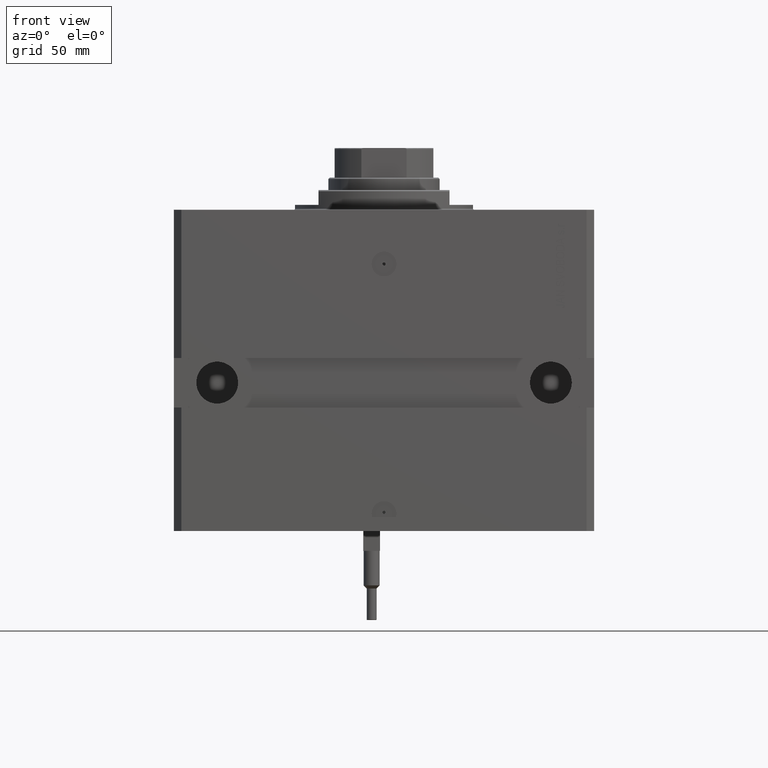
[diagram: clean part render]
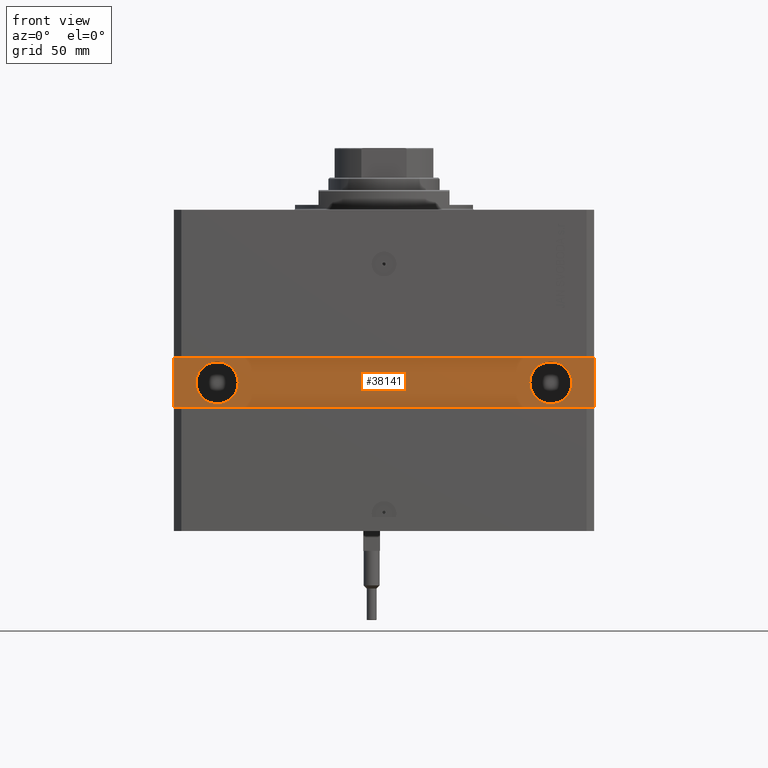
[diagram: same view with one face highlighted and labeled with its STEP entity id]
A machine part, front view. The second image highlights one B-rep face of the part: STEP entity #38141.
In plain terms, the highlighted planar face has unit normal (0, -1, 0).
Its self-contained STEP definition (entity closure, byte-faithful):
#645 = VERTEX_POINT ( 'NONE', #41143 ) ;
#799 = VECTOR ( 'NONE', #43222, 1000.000000000000000 ) ;
#991 = CARTESIAN_POINT ( 'NONE',  ( -67.49999999999997158, -65.00000000000001421, -70.00000000000001421 ) ) ;
#1141 = CARTESIAN_POINT ( 'NONE',  ( 67.50000000000002842, -64.99999999999998579, -70.00000000000000000 ) ) ;
#1921 = CARTESIAN_POINT ( 'NONE',  ( 85.00000000000001421, -64.99999999999998579, -80.00000000000001421 ) ) ;
#3669 = CARTESIAN_POINT ( 'NONE',  ( -75.99999999999997158, -65.00000000000001421, -70.00000000000001421 ) ) ;
#4365 = CARTESIAN_POINT ( 'NONE',  ( -58.99999999999997868, -65.00000000000001421, -70.00000000000001421 ) ) ;
#4924 = FACE_BOUND ( 'NONE', #49041, .T. ) ;
#5908 = DIRECTION ( 'NONE',  ( 1.632680918566406300E-16, -1.000000000000000000, 0.000000000000000000 ) ) ;
#6174 = CARTESIAN_POINT ( 'NONE',  ( 85.00000000000001421, -64.99999999999998579, -80.00000000000001421 ) ) ;
#6857 = ORIENTED_EDGE ( 'NONE', *, *, #12957, .T. ) ;
#9367 = DIRECTION ( 'NONE',  ( 0.000000000000000000, 0.000000000000000000, 1.000000000000000000 ) ) ;
#10005 = ORIENTED_EDGE ( 'NONE', *, *, #34720, .F. ) ;
#10352 = LINE ( 'NONE', #25064, #14165 ) ;
#10465 = ORIENTED_EDGE ( 'NONE', *, *, #32649, .F. ) ;
#10774 = CARTESIAN_POINT ( 'NONE',  ( -85.00000000000001421, -65.00000000000001421, -80.00000000000001421 ) ) ;
#11257 = DIRECTION ( 'NONE',  ( 1.000000000000000000, 1.632680918566406300E-16, 0.000000000000000000 ) ) ;
#11695 = CARTESIAN_POINT ( 'NONE',  ( 76.00000000000002842, -64.99999999999998579, -70.00000000000000000 ) ) ;
#11726 = DIRECTION ( 'NONE',  ( 1.000000000000000000, 0.000000000000000000, 0.000000000000000000 ) ) ;
#12377 = FACE_BOUND ( 'NONE', #14307, .T. ) ;
#12957 = EDGE_CURVE ( 'NONE', #43417, #20235, #10352, .T. ) ;
#13313 = DIRECTION ( 'NONE',  ( 1.000000000000000000, 0.000000000000000000, 0.000000000000000000 ) ) ;
#14165 = VECTOR ( 'NONE', #32765, 1000.000000000000000 ) ;
#14263 = LINE ( 'NONE', #10774, #21467 ) ;
#14307 = EDGE_LOOP ( 'NONE', ( #10465, #22809 ) ) ;
#17079 = LINE ( 'NONE', #1921, #19293 ) ;
#18529 = ORIENTED_EDGE ( 'NONE', *, *, #20668, .T. ) ;
#18654 = AXIS2_PLACEMENT_3D ( 'NONE', #22030, #37211, #11726 ) ;
#19293 = VECTOR ( 'NONE', #9367, 1000.000000000000000 ) ;
#19610 = VERTEX_POINT ( 'NONE', #3669 ) ;
#20097 = PLANE ( 'NONE',  #29290 ) ;
#20235 = VERTEX_POINT ( 'NONE', #27414 ) ;
#20668 = EDGE_CURVE ( 'NONE', #36592, #645, #17079, .T. ) ;
#21345 = EDGE_CURVE ( 'NONE', #46598, #19610, #27253, .T. ) ;
#21467 = VECTOR ( 'NONE', #11257, 1000.000000000000000 ) ;
#22030 = CARTESIAN_POINT ( 'NONE',  ( 67.50000000000002842, -64.99999999999998579, -70.00000000000000000 ) ) ;
#22195 = VERTEX_POINT ( 'NONE', #11695 ) ;
#22809 = ORIENTED_EDGE ( 'NONE', *, *, #48812, .F. ) ;
#23329 = AXIS2_PLACEMENT_3D ( 'NONE', #991, #38085, #46048 ) ;
#25064 = CARTESIAN_POINT ( 'NONE',  ( -85.00000000000001421, -65.00000000000001421, -60.00000000000002842 ) ) ;
#25139 = CIRCLE ( 'NONE', #31489, 8.499999999999992895 ) ;
#26051 = AXIS2_PLACEMENT_3D ( 'NONE', #32859, #43830, #41069 ) ;
#27253 = CIRCLE ( 'NONE', #23329, 8.500000000000000000 ) ;
#27414 = CARTESIAN_POINT ( 'NONE',  ( -85.00000000000001421, -65.00000000000001421, -80.00000000000001421 ) ) ;
#27578 = DIRECTION ( 'NONE',  ( 1.000000000000000000, 1.632680918566406300E-16, 0.000000000000000000 ) ) ;
#28033 = LINE ( 'NONE', #33423, #799 ) ;
#29290 = AXIS2_PLACEMENT_3D ( 'NONE', #43254, #5908, #27578 ) ;
#30939 = EDGE_LOOP ( 'NONE', ( #41598, #18529, #32393, #6857 ) ) ;
#31489 = AXIS2_PLACEMENT_3D ( 'NONE', #1141, #39464, #13313 ) ;
#32393 = ORIENTED_EDGE ( 'NONE', *, *, #40822, .T. ) ;
#32649 = EDGE_CURVE ( 'NONE', #22195, #40000, #25139, .T. ) ;
#32765 = DIRECTION ( 'NONE',  ( 0.000000000000000000, 0.000000000000000000, -1.000000000000000000 ) ) ;
#32859 = CARTESIAN_POINT ( 'NONE',  ( -67.49999999999997158, -65.00000000000001421, -70.00000000000001421 ) ) ;
#33423 = CARTESIAN_POINT ( 'NONE',  ( 85.00000000000001421, -64.99999999999998579, -59.99999999999998579 ) ) ;
#34291 = CARTESIAN_POINT ( 'NONE',  ( -85.00000000000001421, -65.00000000000001421, -60.00000000000002842 ) ) ;
#34720 = EDGE_CURVE ( 'NONE', #19610, #46598, #34759, .T. ) ;
#34759 = CIRCLE ( 'NONE', #26051, 8.500000000000000000 ) ;
#36034 = FACE_OUTER_BOUND ( 'NONE', #30939, .T. ) ;
#36592 = VERTEX_POINT ( 'NONE', #6174 ) ;
#37211 = DIRECTION ( 'NONE',  ( 1.041232428609250764E-16, -1.000000000000000000, -6.162975822039154730E-33 ) ) ;
#38085 = DIRECTION ( 'NONE',  ( 1.101411730780568590E-16, -1.000000000000000000, 0.000000000000000000 ) ) ;
#38141 = ADVANCED_FACE ( 'NONE', ( #12377, #4924, #36034 ), #20097, .T. ) ;
#39464 = DIRECTION ( 'NONE',  ( 1.041232428609250764E-16, -1.000000000000000000, -6.162975822039154730E-33 ) ) ;
#40000 = VERTEX_POINT ( 'NONE', #44079 ) ;
#40307 = ORIENTED_EDGE ( 'NONE', *, *, #21345, .F. ) ;
#40822 = EDGE_CURVE ( 'NONE', #645, #43417, #28033, .T. ) ;
#41069 = DIRECTION ( 'NONE',  ( 1.000000000000000000, 0.000000000000000000, 0.000000000000000000 ) ) ;
#41143 = CARTESIAN_POINT ( 'NONE',  ( 85.00000000000001421, -64.99999999999998579, -59.99999999999998579 ) ) ;
#41598 = ORIENTED_EDGE ( 'NONE', *, *, #43892, .T. ) ;
#43222 = DIRECTION ( 'NONE',  ( -1.000000000000000000, -1.632680918566406300E-16, -2.449021377849609204E-16 ) ) ;
#43254 = CARTESIAN_POINT ( 'NONE',  ( 1.084072457370145048E-14, -65.00000000000000000, 0.000000000000000000 ) ) ;
#43417 = VERTEX_POINT ( 'NONE', #34291 ) ;
#43830 = DIRECTION ( 'NONE',  ( 1.101411730780568590E-16, -1.000000000000000000, 0.000000000000000000 ) ) ;
#43892 = EDGE_CURVE ( 'NONE', #20235, #36592, #14263, .T. ) ;
#44079 = CARTESIAN_POINT ( 'NONE',  ( 59.00000000000003553, -64.99999999999998579, -70.00000000000000000 ) ) ;
#46048 = DIRECTION ( 'NONE',  ( 1.000000000000000000, 0.000000000000000000, 0.000000000000000000 ) ) ;
#46598 = VERTEX_POINT ( 'NONE', #4365 ) ;
#47270 = CIRCLE ( 'NONE', #18654, 8.499999999999992895 ) ;
#48812 = EDGE_CURVE ( 'NONE', #40000, #22195, #47270, .T. ) ;
#49041 = EDGE_LOOP ( 'NONE', ( #40307, #10005 ) ) ;